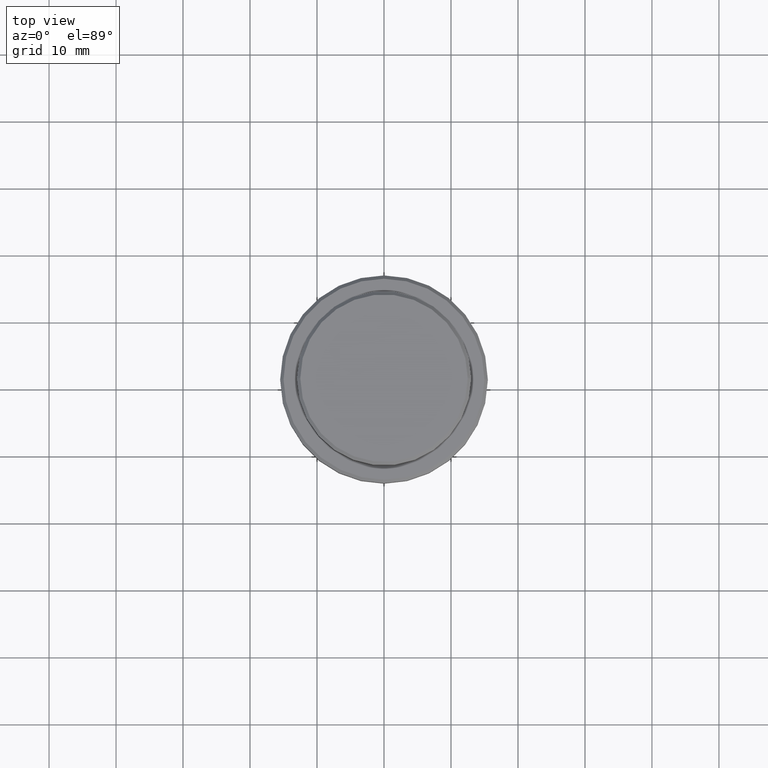
[diagram: clean part render]
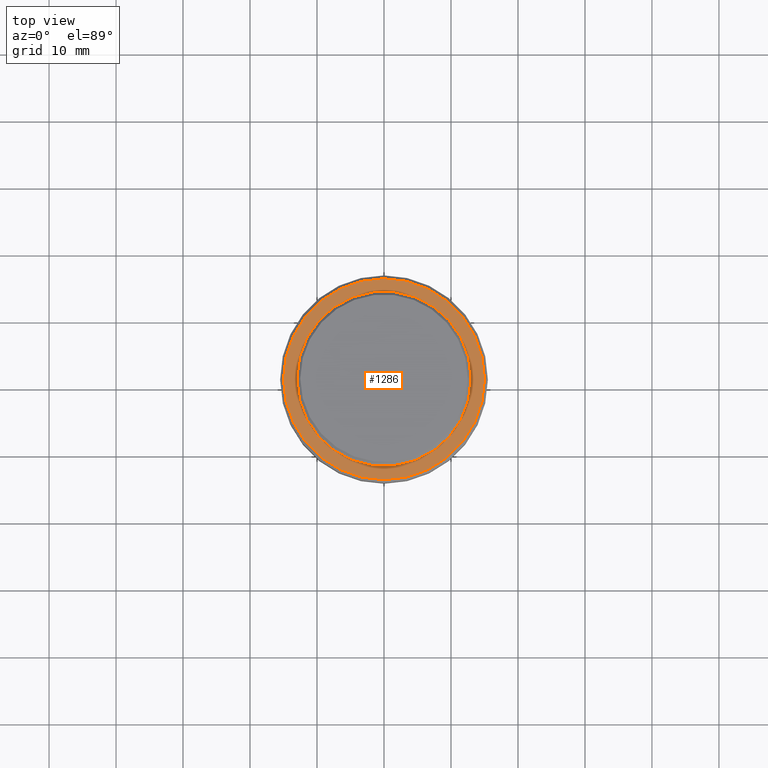
[diagram: same view with one face highlighted and labeled with its STEP entity id]
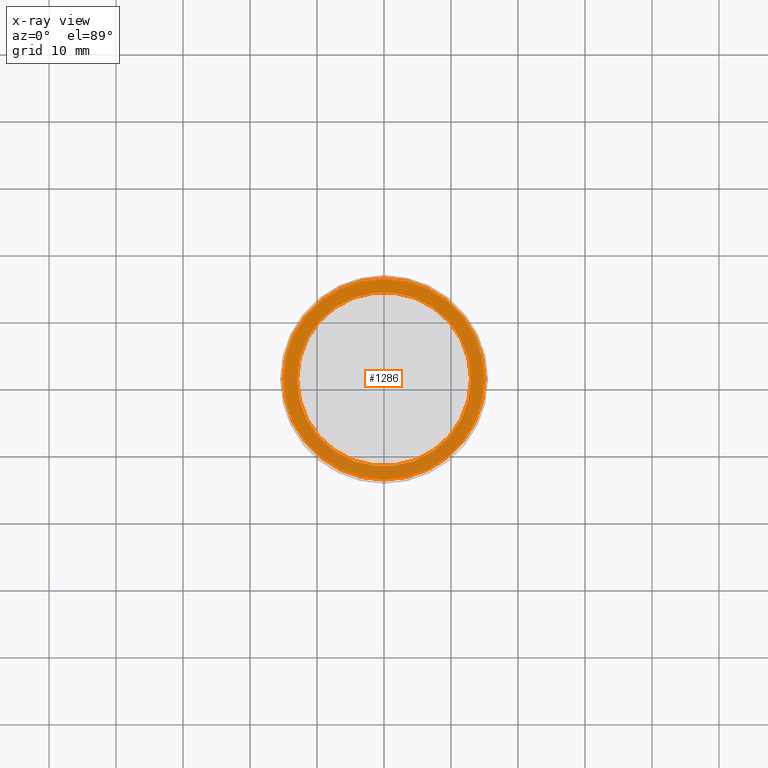
[diagram: x-ray of the same camera — body ghosted, the highlighted face saturated]
A machine part, top view. The second image highlights one B-rep face of the part: STEP entity #1286.
The next image is the same camera in x-ray: the body ghosted, the highlighted face saturated — about 0% of this face is hidden behind the body in this view.
In plain terms, the highlighted planar face has unit normal (0, -0, 1).
Its self-contained STEP definition (entity closure, byte-faithful):
#2 = CARTESIAN_POINT ( 'NONE',  ( -15.00000000000000000, 0.000000000000000000, -9.000000000000000000 ) ) ;
#17 = EDGE_CURVE ( 'NONE', #295, #309, #1330, .T. ) ;
#37 = CARTESIAN_POINT ( 'NONE',  ( 0.000000000000000000, 0.000000000000000000, -9.000000000000000000 ) ) ;
#130 = ORIENTED_EDGE ( 'NONE', *, *, #17, .T. ) ;
#215 = CIRCLE ( 'NONE', #1000, 15.00000000000000000 ) ;
#234 = ORIENTED_EDGE ( 'NONE', *, *, #785, .T. ) ;
#278 = AXIS2_PLACEMENT_3D ( 'NONE', #1358, #376, #886 ) ;
#295 = VERTEX_POINT ( 'NONE', #1411 ) ;
#296 = DIRECTION ( 'NONE',  ( 1.000000000000000000, 0.000000000000000000, 0.000000000000000000 ) ) ;
#309 = VERTEX_POINT ( 'NONE', #2 ) ;
#317 = CARTESIAN_POINT ( 'NONE',  ( 0.000000000000000000, 0.000000000000000000, -9.000000000000000000 ) ) ;
#337 = VERTEX_POINT ( 'NONE', #968 ) ;
#371 = CIRCLE ( 'NONE', #1098, 12.99999999999999467 ) ;
#376 = DIRECTION ( 'NONE',  ( -0.000000000000000000, -0.000000000000000000, 1.000000000000000000 ) ) ;
#407 = DIRECTION ( 'NONE',  ( 0.000000000000000000, -0.000000000000000000, 1.000000000000000000 ) ) ;
#429 = CARTESIAN_POINT ( 'NONE',  ( -12.99999999999999467, 1.592040838891558504E-15, -9.000000000000000000 ) ) ;
#550 = DIRECTION ( 'NONE',  ( 0.000000000000000000, 0.000000000000000000, -1.000000000000000000 ) ) ;
#606 = DIRECTION ( 'NONE',  ( -0.000000000000000000, -0.000000000000000000, 1.000000000000000000 ) ) ;
#609 = EDGE_CURVE ( 'NONE', #309, #295, #215, .T. ) ;
#617 = AXIS2_PLACEMENT_3D ( 'NONE', #1175, #407, #296 ) ;
#622 = DIRECTION ( 'NONE',  ( 1.000000000000000000, 0.000000000000000000, 0.000000000000000000 ) ) ;
#638 = AXIS2_PLACEMENT_3D ( 'NONE', #37, #550, #997 ) ;
#646 = FACE_BOUND ( 'NONE', #1394, .T. ) ;
#697 = CARTESIAN_POINT ( 'NONE',  ( 0.000000000000000000, 0.000000000000000000, -9.000000000000000000 ) ) ;
#722 = ORIENTED_EDGE ( 'NONE', *, *, #1302, .T. ) ;
#748 = DIRECTION ( 'NONE',  ( 1.000000000000000000, 0.000000000000000000, 0.000000000000000000 ) ) ;
#765 = DIRECTION ( 'NONE',  ( 0.000000000000000000, 0.000000000000000000, -1.000000000000000000 ) ) ;
#785 = EDGE_CURVE ( 'NONE', #337, #1248, #371, .T. ) ;
#852 = FACE_OUTER_BOUND ( 'NONE', #1091, .T. ) ;
#886 = DIRECTION ( 'NONE',  ( 1.000000000000000000, 0.000000000000000000, 0.000000000000000000 ) ) ;
#918 = ORIENTED_EDGE ( 'NONE', *, *, #609, .T. ) ;
#968 = CARTESIAN_POINT ( 'NONE',  ( 12.99999999999999467, 0.000000000000000000, -9.000000000000000000 ) ) ;
#997 = DIRECTION ( 'NONE',  ( 1.000000000000000000, 0.000000000000000000, 0.000000000000000000 ) ) ;
#998 = CIRCLE ( 'NONE', #638, 12.99999999999999467 ) ;
#1000 = AXIS2_PLACEMENT_3D ( 'NONE', #697, #606, #622 ) ;
#1082 = PLANE ( 'NONE',  #617 ) ;
#1091 = EDGE_LOOP ( 'NONE', ( #918, #130 ) ) ;
#1098 = AXIS2_PLACEMENT_3D ( 'NONE', #317, #765, #748 ) ;
#1175 = CARTESIAN_POINT ( 'NONE',  ( 0.000000000000000000, 12.49999999999999289, -9.000000000000000000 ) ) ;
#1248 = VERTEX_POINT ( 'NONE', #429 ) ;
#1286 = ADVANCED_FACE ( 'NONE', ( #852, #646 ), #1082, .T. ) ;
#1302 = EDGE_CURVE ( 'NONE', #1248, #337, #998, .T. ) ;
#1330 = CIRCLE ( 'NONE', #278, 15.00000000000000000 ) ;
#1358 = CARTESIAN_POINT ( 'NONE',  ( 0.000000000000000000, 0.000000000000000000, -9.000000000000000000 ) ) ;
#1394 = EDGE_LOOP ( 'NONE', ( #234, #722 ) ) ;
#1411 = CARTESIAN_POINT ( 'NONE',  ( 15.00000000000000000, 1.867586368699713376E-15, -9.000000000000000000 ) ) ;